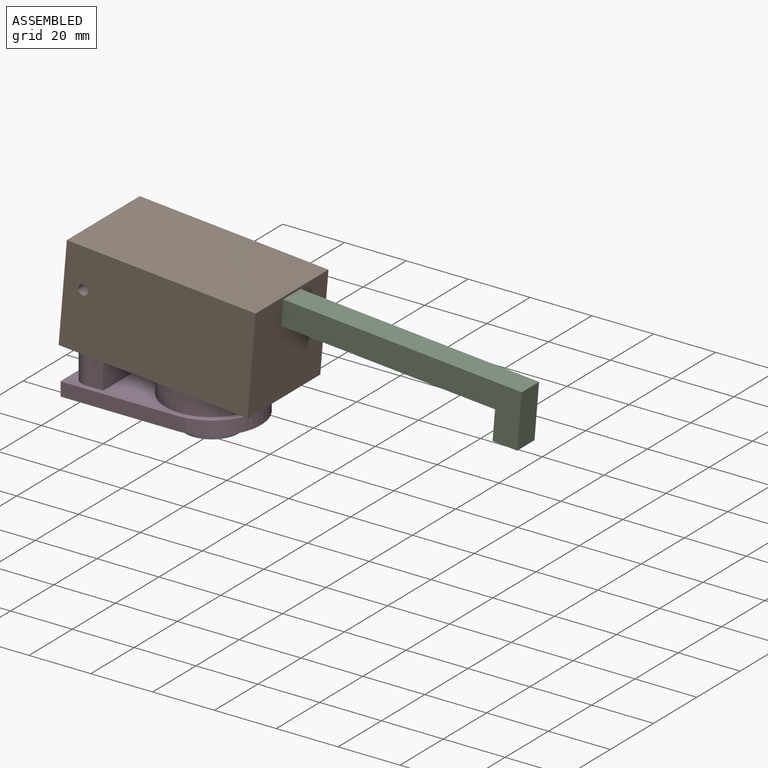
[diagram: assembled view]
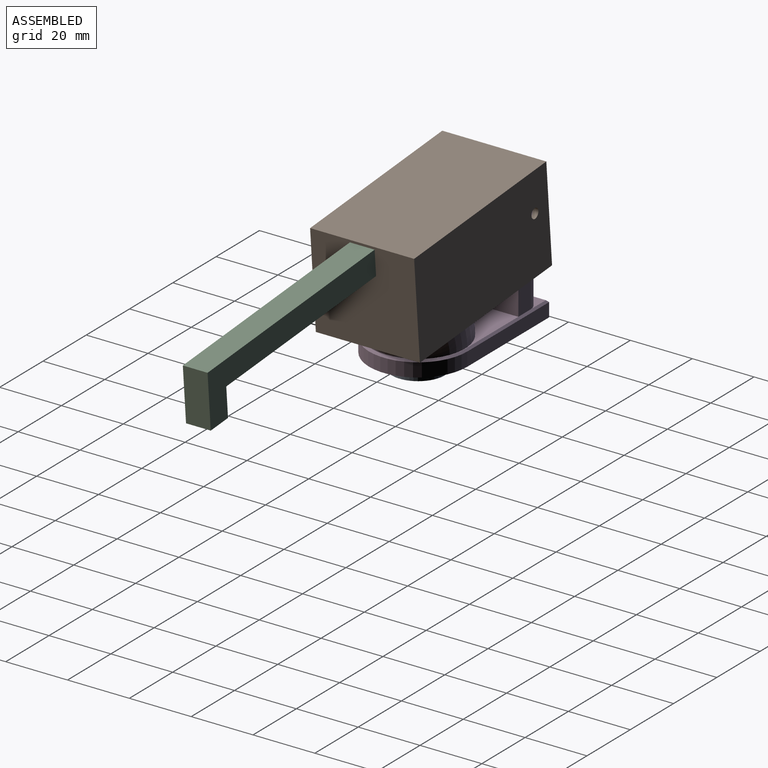
[diagram: assembled view, second angle]
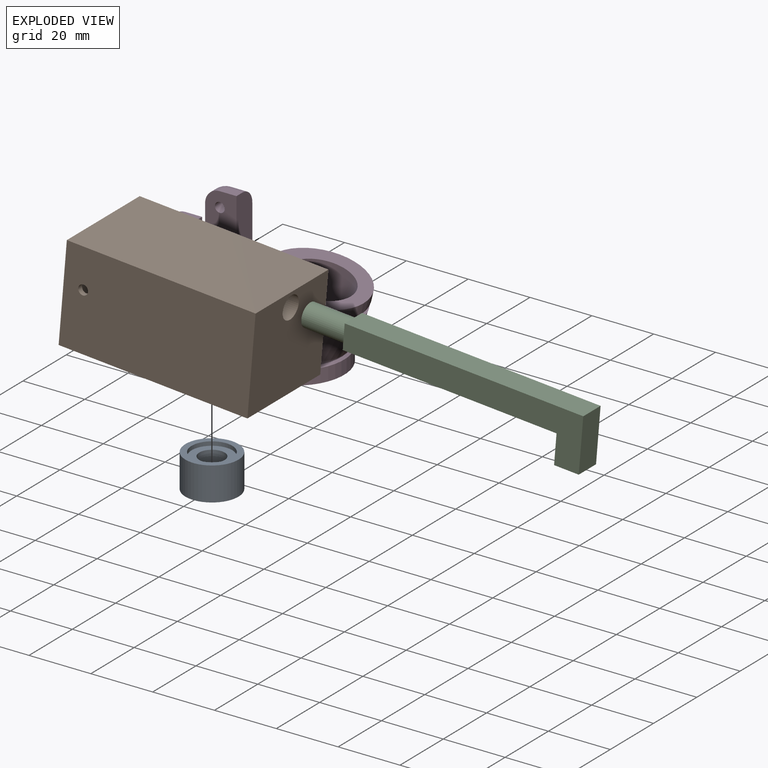
[diagram: exploded view]
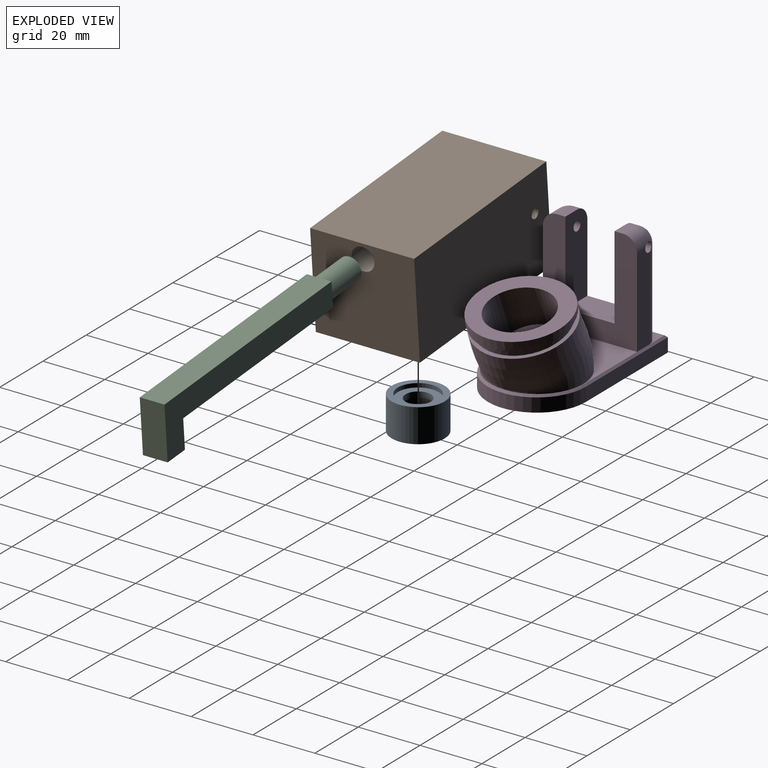
[diagram: exploded view, second angle]
ASSEMBLY  parts=4 mates=7
PART A: 8 faces, bbox 17.1x17.1x10.8 mm
  f0: cylinder r=4.1mm len=8.2mm, axis (0,0,1), area 49.1mm2, adj f4,f7
  f1: cylinder r=6.6mm len=13.2mm, axis (0,0,-1), area 53.9mm2, adj f3,f4
  f2: cylinder r=8.57mm len=17.15mm, axis (0,0,-1), area 583.1mm2, adj f3,f5
  f3: plane 17.15x17.15mm, normal (0,0,1), area 94mm2, adj f1,f2
  f4: plane 13.2x13.2mm, normal (0,0,1), area 84mm2, adj f0,f1
  f5: plane 17.15x17.15mm, normal (0,0,-1), area 104.2mm2, adj f2,f6
  f6: cylinder r=6.35mm len=12.7mm, axis (0,0,-1), area 304mm2, adj f5,f7
  f7: plane 12.7x12.7mm, normal (0,0,-1), area 73.9mm2, adj f0,f6
PART B: 27 faces, bbox 61.3x33.7x31.5 mm
  f0: plane 33.66x31.49mm, normal (1,0,0), area 1016.7mm2, adj f6,f7,f8,f13,f26
  f1: plane 33.66x31.49mm, normal (-1,0,0), area 1059.7mm2, adj f6,f7,f8,f26
  f2: plane 30.48x22.91mm, normal (-0.34,0,-0.94), area 239.6mm2, adj f4,f15,f19,f20,f21,f22
  f3: cylinder r=2.1mm len=4.2mm, axis (1,0,0), area 36.7mm2, adj f11,f14
  f4: torus R=38.1mm, axis (0,1,0), area 1273.5mm2, adj f2,f5,f9
  f5: plane 30.48x15.81mm, normal (-0.34,0,-0.94), area 148.1mm2, adj f4,f15,f19,f26
  f6: plane 61.28x31.49mm, normal (0,1,0), area 1921.5mm2, adj f0,f1,f8,f24,f26
  f7: plane 61.28x31.49mm, normal (0,-1,0), area 1921.5mm2, adj f0,f1,f8,f25,f26
  f8: plane 61.28x33.66mm, normal (0,0,1), area 2062.3mm2, adj f0,f1,f6,f7
  f9: torus R=12.06mm, axis (0,0,1), area 441.4mm2, adj f4,f10
  f10: plane 24.13x24.13mm, normal (0,0,-1), area 386mm2, adj f9,f11
  f11: cylinder r=4.76mm len=9.53mm, axis (0,0,-1), area 213.8mm2, adj f3,f10,f12
  f12: plane 9.53x9.53mm, normal (0,0,-1), area 71.3mm2, adj f11
  f13: cylinder r=3.7mm len=15.24mm, axis (1,0,0), area 354.3mm2, adj f0,f14
  f14: plane 7.4x7.4mm, normal (1,0,0), area 29.2mm2, adj f3,f13
  f15: plane 51.81x29.58mm, normal (0,1,0), area 655.3mm2, adj f2,f5,f16,f21,f23,f25,f26
  f16: cylinder r=4.57mm len=29.58mm, axis (0,0,-1), area 209mm2, adj f15,f17,f23,f25,f26
  f17: plane 29.58x21.34mm, normal (1,0,0), area 631.1mm2, adj f16,f18,f23,f26
  f18: cylinder r=4.57mm len=29.58mm, axis (0,0,-1), area 209mm2, adj f17,f19,f23,f24,f26
  f19: plane 51.81x29.58mm, normal (0,-1,0), area 655.3mm2, adj f2,f5,f18,f22,f23,f24,f26
  f20: plane 21.34x17.15mm, normal (-1,0,0), area 365.9mm2, adj f2,f21,f22,f23
  f21: cylinder r=4.57mm len=17.15mm, axis (0,0,-1), area 118.8mm2, adj f2,f15,f20,f23
  f22: cylinder r=4.57mm len=17.15mm, axis (0,0,-1), area 118.8mm2, adj f2,f19,f20,f23
  f23: plane 30.48x22.23mm, normal (0,0,-1), area 659.5mm2, adj f15,f16,f17,f18,f19,f20,f21,f22
  f24: cylinder r=1.59mm len=3.18mm, axis (0,-1,0), area 16.3mm2, adj f6,f18,f19
  f25: cylinder r=1.59mm len=3.18mm, axis (0,-1,0), area 16.3mm2, adj f7,f15,f16
  f26: plane 61.28x33.66mm, normal (0,0,-1), area 352.9mm2, adj f0,f1,f5,f6,f7,f15,f16,f17
PART C: 13 faces, bbox 91.4x8x17.5 mm
  f0: cylinder r=2.75mm len=90.17mm, axis (1,0,0), area 1527.8mm2, adj f7,f8,f10
  f1: plane 8x8mm, normal (-1,0,0), area 21mm2, adj f2,f3,f4,f5,f6
  f2: plane 77.45x8mm, normal (0,0,1), area 619.6mm2, adj f1,f3,f5,f9
  f3: plane 77.45x17.53mm, normal (0,-1,0), area 695.8mm2, adj f1,f2,f4,f9,f11,f12
  f4: plane 69.45x8mm, normal (0,0,-1), area 555.6mm2, adj f1,f3,f5,f11
  f5: plane 77.45x17.53mm, normal (0,1,0), area 695.8mm2, adj f1,f2,f4,f9,f11,f12
  f6: cylinder r=3.7mm len=13.97mm, axis (1,0,0), area 324.8mm2, adj f1,f7
  f7: plane 7.4x7.4mm, normal (-1,0,0), area 19.3mm2, adj f0,f6
  f8: plane 5.5x5.5mm, normal (-1,0,0), area 23.8mm2, adj f0
  f9: plane 17.53x8mm, normal (1,0,0), area 140.2mm2, adj f2,f3,f5,f12
  f10: cylinder r=2.75mm len=13.53mm, axis (0,0,-1), area 203.4mm2, adj f0,f12
  f11: plane 9.53x8mm, normal (-1,0,0), area 76.2mm2, adj f3,f4,f5,f12
  f12: plane 8x8mm, normal (0,0,-1), area 40.2mm2, adj f3,f5,f9,f10,f11
PART D: 44 faces, bbox 60.8x32.6x39.2 mm
  f0: cylinder r=8.57mm len=17.15mm, axis (0,0,-1), area 171mm2, adj f41,f43
  f1: cylinder r=4.85mm len=9.7mm, axis (0,0,-1), area 181.2mm2, adj f40,f41
  f2: plane 30.48x7.11mm, normal (0,0,1), area 86.4mm2, adj f11,f19,f22,f35,f36,f38
  f3: torus R=38.1mm, axis (0,1,0), area 832.9mm2, adj f28,f31
  f4: plane 39.75x30.48mm, normal (0,0,1), area 394.3mm2, adj f15,f28,f35,f37,f38
  f5: plane 37.84x4.45mm, normal (0,1,0), area 168.2mm2, adj f7,f14,f29,f38
  f6: plane 37.84x4.45mm, normal (0,-1,0), area 168.2mm2, adj f7,f14,f29,f35
  f7: plane 53.72x31.75mm, normal (0,0,-1), area 1209.5mm2, adj f5,f6,f14,f29,f42
  f8: plane 5.4x2.73mm, normal (0,0,1), area 14.7mm2, adj f9,f15,f21,f27
  f9: cylinder r=4.76mm len=4.76mm, axis (0,1,0), area 20.4mm2, adj f8,f11,f20,f27
  f10: cylinder r=1.59mm len=7.3mm, axis (0,1,0), area 71.8mm2, adj f17,f19,f20,f21,f27
  f11: plane 28.58x21.34mm, normal (-1,0,0), area 256.9mm2, adj f2,f9,f13,f19,f22,f25,f26,f27
  f12: plane 5.4x2.73mm, normal (0,0,1), area 14.7mm2, adj f13,f15,f24,f26
  f13: cylinder r=4.76mm len=4.76mm, axis (0,1,0), area 20.4mm2, adj f11,f12,f23,f26
  f14: plane 31.75x4.45mm, normal (-1,0,0), area 141.1mm2, adj f5,f6,f7,f36
  f15: plane 33.34x30.48mm, normal (1,0,0), area 578.7mm2, adj f4,f8,f12,f17,f18,f21,f24,f25
  f16: cylinder r=1.59mm len=7.3mm, axis (0,1,0), area 71.8mm2, adj f18,f22,f23,f24,f26
  f17: plane 28.77x5.59mm, normal (0,-1,0), area 158.1mm2, adj f10,f15,f19,f21,f35
  f18: plane 28.77x5.59mm, normal (0,1,0), area 158.1mm2, adj f15,f16,f22,f24,f38
  f19: cylinder r=4.57mm len=28.58mm, axis (0,0,1), area 204.1mm2, adj f2,f10,f11,f17,f20
  f20: torus R=0.19mm, axis (0,1,0), area 33mm2, adj f9,f10,f19,f21
  f21: cylinder r=4.57mm len=5.4mm, axis (1,0,0), area 37.6mm2, adj f8,f10,f15,f17,f20
  f22: cylinder r=4.57mm len=28.58mm, axis (0,0,1), area 204.1mm2, adj f2,f11,f16,f18,f23
  f23: torus R=0.19mm, axis (0,1,0), area 33mm2, adj f13,f16,f22,f24
  f24: cylinder r=4.57mm len=5.4mm, axis (1,0,0), area 37.6mm2, adj f12,f15,f16,f18,f23
  f25: plane 15.88x10.16mm, normal (0,0,1), area 161.3mm2, adj f11,f15,f26,f27
  f26: plane 26.99x10.16mm, normal (0,-1,0), area 261.4mm2, adj f11,f12,f13,f15,f16,f25
  f27: plane 26.99x10.16mm, normal (0,1,0), area 261.4mm2, adj f8,f9,f10,f11,f15,f25
  f28: torus R=15.82mm, axis (0,-1,0), area 839.2mm2, adj f3,f4
  f29: cylinder r=15.88mm len=31.75mm, axis (0,0,1), area 221.7mm2, adj f5,f6,f7,f37
  f30: cylinder r=13.84mm len=27.69mm, axis (0.29,0,0.96), area 198.8mm2, adj f31,f32
  f31: plane 30.74x29.43mm, normal (0.29,0,0.96), area 115.9mm2, adj f3,f30
  f32: plane 30.74x29.44mm, normal (-0.29,0,-0.96), area 115.9mm2, adj f30,f34
  f33: plane 30.23x29.57mm, normal (0.21,0,0.98), area 388.3mm2, adj f34,f39
  f34: torus R=38.1mm, axis (0,1,0), area 201.4mm2, adj f32,f33
  f35: plane 37.84x0.64mm, normal (0,-0.71,0.71), area 33.7mm2, adj f2,f4,f6,f17,f36,f37
  f36: plane 31.75x0.64mm, normal (-0.71,0,0.71), area 27.9mm2, adj f2,f14,f35,f38
  f37: cone r=15.88mm half-angle=45deg, axis (0,0,-1), area 43.9mm2, adj f4,f29,f35,f38
  f38: plane 37.84x0.64mm, normal (0,0.71,0.71), area 33.7mm2, adj f2,f4,f5,f18,f36,f37
  f39: cylinder r=10.16mm len=25.25mm, axis (0.37,0,0.93), area 977.4mm2, adj f33,f40
  f40: plane 21.14x19.66mm, normal (0.37,0,0.93), area 244.6mm2, adj f1,f39
  f41: plane 17.15x17.15mm, normal (0,0,-1), area 157mm2, adj f0,f1
  f42: cylinder r=11.11mm len=22.23mm, axis (0,0,-1), area 221.7mm2, adj f7,f43
  f43: plane 22.23x22.23mm, normal (0,0,-1), area 157.1mm2, adj f0,f42
PLACE A rot(axis=(0,0,1),180deg) t=(-17.32,9.27,8.18)mm
PLACE B rot(axis=(0,1,0),4.8deg) t=(-47.23,9.27,36.78)mm
PLACE C rot(axis=(0,1,0),4.8deg) t=(8.17,9.27,40.07)mm
PLACE D t=(-26.59,9.27,8.21)mm fixed
MATE planar A.f2 <-> D.f0  axis (0,0,1) through (-17.32,9.27,9.48)mm
MATE cylindrical B.f24 <-> D.f3  axis (0,-1,0) through (-47.23,24.28,36.78)mm
MATE cylindrical B.f13 <-> C.f6  axis (1,0,-0.08) through (8.17,9.27,40.07)mm
MATE cylindrical D.f0 <-> A.f2  axis (0,0,-1) through (-17.32,9.27,6.3)mm
MATE planar C.f1 <-> B.f0  axis (-1,0,0.08) through (8.51,5.27,44.05)mm
MATE parallel C.f2 <-> B.f8  axis (0.08,0,1) through (47.1,9.27,40.79)mm
MATE planar B.f15 <-> D.f17  axis (0,1,0) through (-33.48,-5.97,27.37)mm
